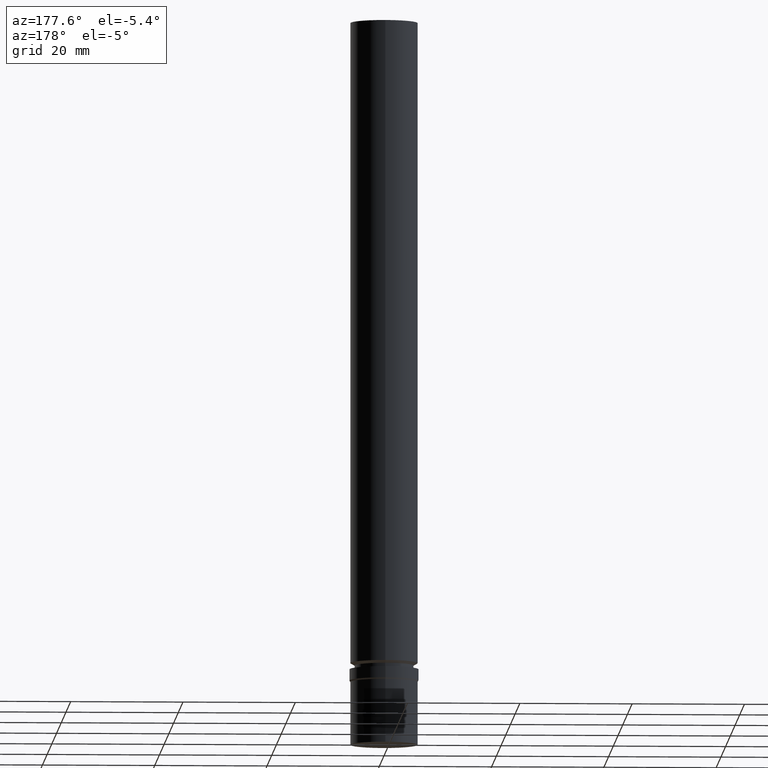
[diagram: clean part render]
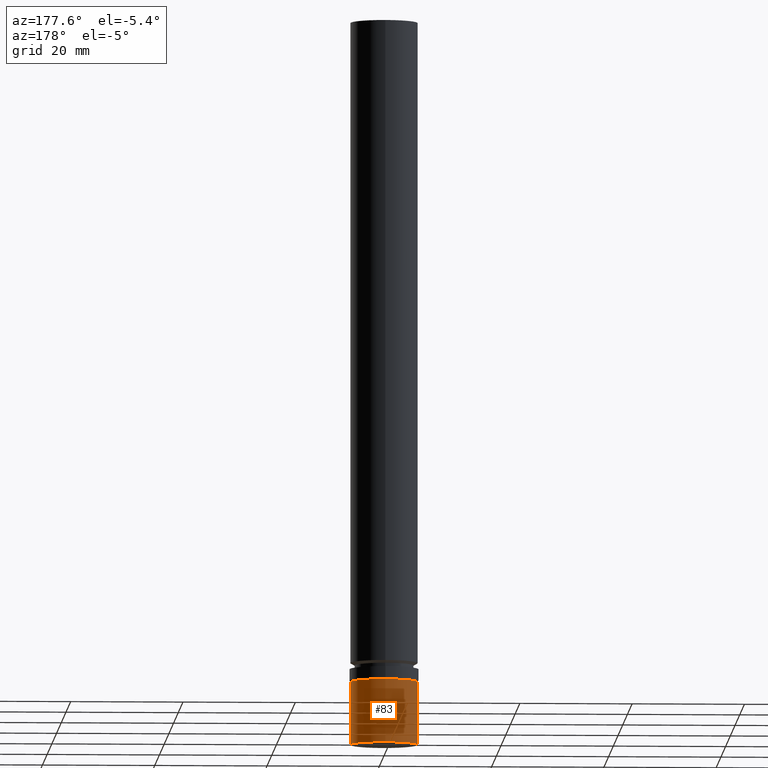
[diagram: same view with one face highlighted and labeled with its STEP entity id]
A machine part, auxiliary view. The second image highlights one B-rep face of the part: STEP entity #83.
In plain terms, the highlighted cylindrical surface (bore or boss wall) has radius 6 mm, axis along (-0, -0, 1).
Its self-contained STEP definition (entity closure, byte-faithful):
#83=ADVANCED_FACE('',(#107,#108),#109,.T.);
#107=FACE_BOUND('',#132,.T.);
#108=FACE_BOUND('',#133,.T.);
#109=CYLINDRICAL_SURFACE('',#134,6.00000005);
#132=EDGE_LOOP('',(#173));
#133=EDGE_LOOP('',(#174));
#134=AXIS2_PLACEMENT_3D('',#175,#176,#177);
#173=ORIENTED_EDGE('',*,*,#178,.F.);
#174=ORIENTED_EDGE('',*,*,#185,.T.);
#175=CARTESIAN_POINT('',(-4.0536399239686E-016,-8.10727984793721E-016,6.62009638499999));
#176=DIRECTION('',(-6.12323399573677E-017,-1.22464679914735E-016,1.0));
#177=DIRECTION('',(-1.23259516440783E-032,1.0,1.22464679914735E-016));
#178=EDGE_CURVE('',#186,#186,#187,.T.);
#185=EDGE_CURVE('',#200,#200,#201,.T.);
#186=VERTEX_POINT('',#202);
#187=CIRCLE('',#203,6.00000005);
#200=VERTEX_POINT('',#216);
#201=CIRCLE('',#217,6.00000005);
#202=CARTESIAN_POINT('',(-6.12323399573677E-017,6.00000005,1.0));
#203=AXIS2_PLACEMENT_3D('',#218,#219,#220);
#216=CARTESIAN_POINT('',(-7.49495644836353E-016,6.00000005,12.24019277));
#217=AXIS2_PLACEMENT_3D('',#239,#240,#241);
#218=CARTESIAN_POINT('',(-6.12323399573677E-017,-1.22464679914735E-016,1.0));
#219=DIRECTION('',(6.12323399573677E-017,1.22464679914735E-016,-1.0));
#220=DIRECTION('',(-1.23259516440783E-032,1.0,1.22464679914735E-016));
#239=CARTESIAN_POINT('',(-7.49495644836353E-016,-1.49899128967271E-015,12.24019277));
#240=DIRECTION('',(6.12323399573677E-017,1.22464679914735E-016,-1.0));
#241=DIRECTION('',(-1.23259516440783E-032,1.0,1.22464679914735E-016));